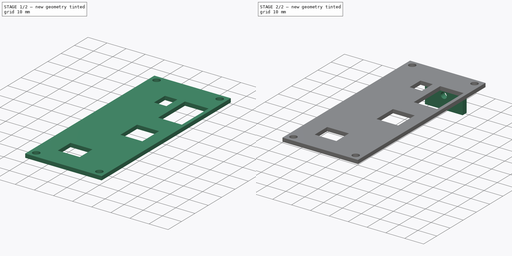
[diagram: build sequence overview — one tinted view per stage of 2, left to right]
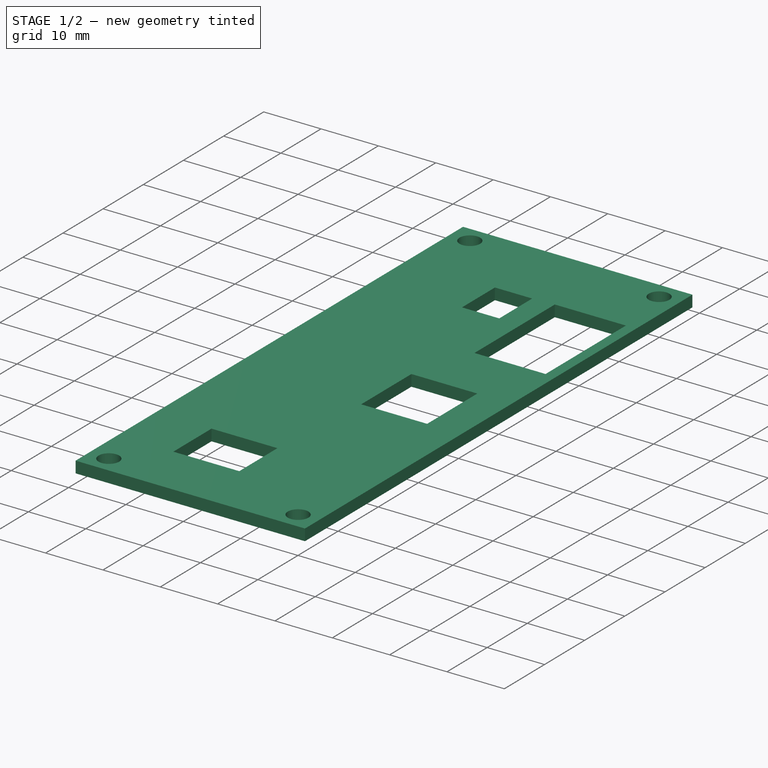
[diagram: stage 1 of 2 — iso view after this stage's code; geometry added in this stage tinted green]
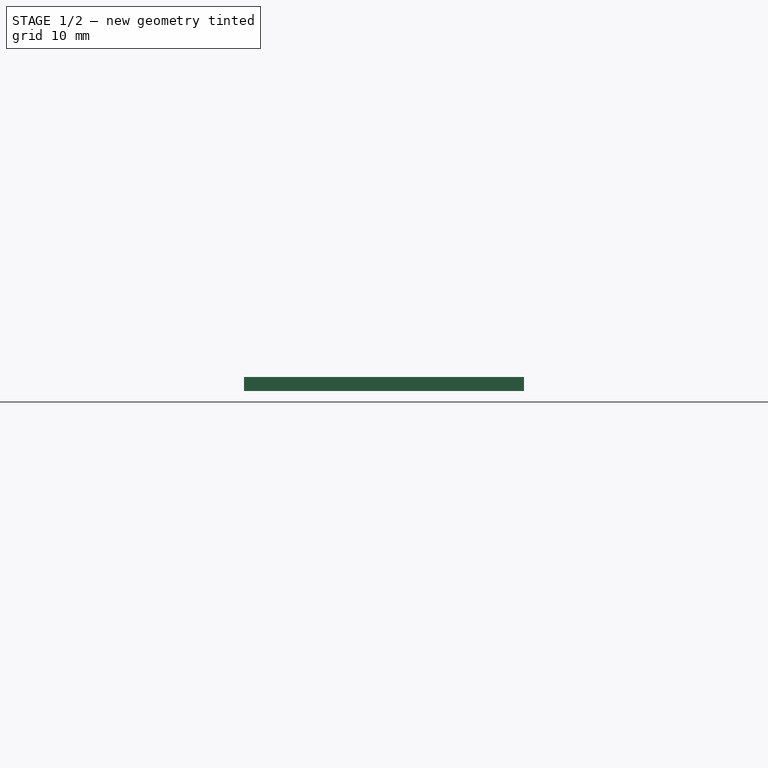
[diagram: stage 1 of 2 — front view after this stage's code; geometry added in this stage tinted green]
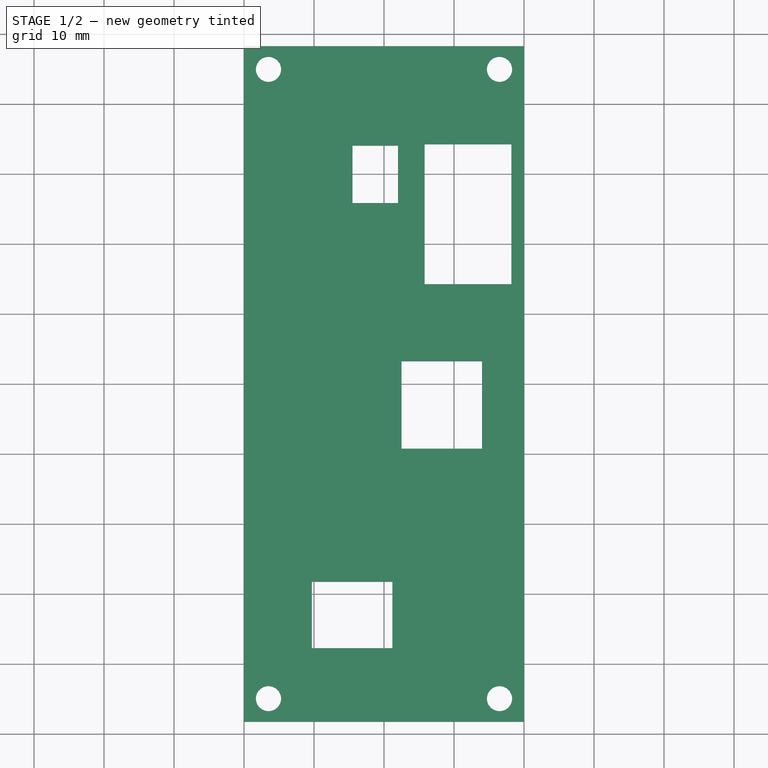
[diagram: stage 1 of 2 — top view after this stage's code; geometry added in this stage tinted green]
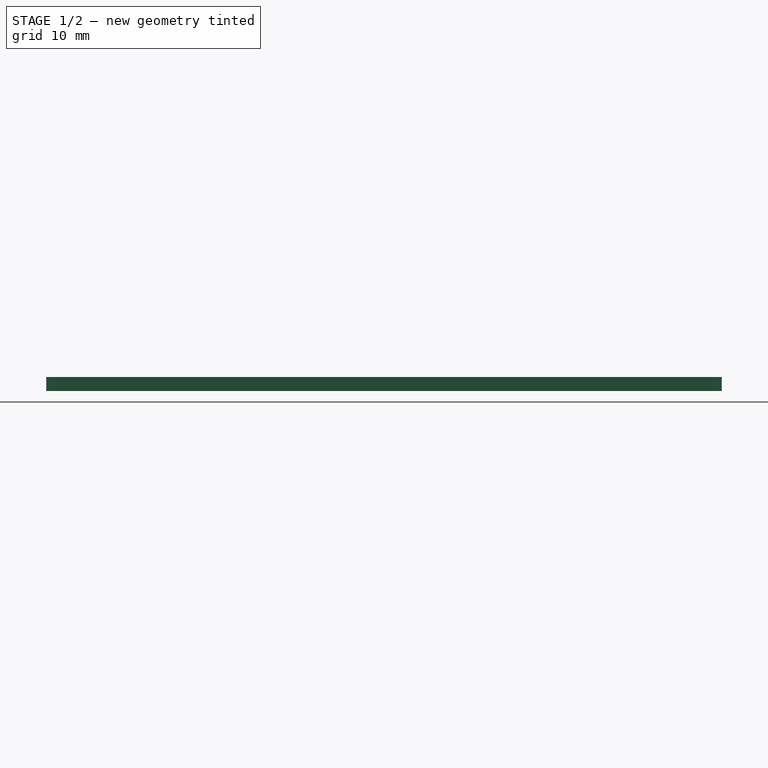
[diagram: stage 1 of 2 — right view after this stage's code; geometry added in this stage tinted green]
FCSTD DOCUMENT  (FreeCAD 0.18.4R)
Label: right_case_2
License: All rights reserved
LicenseURL: http://en.wikipedia.org/wiki/All_rights_reserved
objects: Sketcher::SketchObject×4, PartDesign::Pad×2, PartDesign::Pocket×2, PartDesign::Body×1
note: 13 computed .brp shape members not serialized (recipe doc carries the construction recipe); baked Part::Feature solids carry a one-line shape summary decoded from their .brp

FEATURE [Sketcher::SketchObject] Sketch
  MapMode = 5
  Support = -> [XY_Plane]
  sketch-geometry (4):
    g0: LineSegment StartX=-20 StartY=48.25 StartZ=0 EndX=20 EndY=48.25 EndZ=0
    g1: LineSegment StartX=20 StartY=48.25 StartZ=0 EndX=20 EndY=-48.25 EndZ=0
    g2: LineSegment StartX=20 StartY=-48.25 StartZ=0 EndX=-20 EndY=-48.25 EndZ=0
    g3: LineSegment StartX=-20 StartY=-48.25 StartZ=0 EndX=-20 EndY=48.25 EndZ=0
  constraints (10):
    c: Coincident(g0,g1)
    c: Coincident(g1,g2)
    c: Coincident(g2,g3)
    c: Coincident(g3,g0)
    c: Horizontal(g2)
    c: Vertical(g1)
    c: DistanceX(g0,g0) = 40
    c: DistanceY(g3,g3) = 96.5
    c: Symmetric(g0,g0,g-2)
    c: Symmetric(g2,g0,g-1)
FEATURE [PartDesign::Pad] Pad
  Length = 2
  Length2 = 100
  Profile = -> Sketch
  Type = 0
FEATURE [Sketcher::SketchObject] Sketch001
  ExternalGeometry = -> [Pad]
  MapMode = 5
  Placement = pos=(0,0,2) rot=(0,0,1;0rad)
  Support = -> [Pad]
  sketch-geometry (20):
    g0: Circle CenterX=-16.5 CenterY=44.95 CenterZ=0 NormalX=0 NormalY=0 NormalZ=1 AngleXU=0 Radius=1.8
    g1: Circle CenterX=16.5 CenterY=44.95 CenterZ=0 NormalX=0 NormalY=0 NormalZ=1 AngleXU=0 Radius=1.8
    g2: Circle CenterX=-16.5 CenterY=-44.95 CenterZ=0 NormalX=0 NormalY=0 NormalZ=1 AngleXU=0 Radius=1.8
    g3: Circle CenterX=16.5 CenterY=-44.95 CenterZ=0 NormalX=0 NormalY=0 NormalZ=1 AngleXU=0 Radius=1.8
    g4: LineSegment StartX=2.5 StartY=-9.25 StartZ=0 EndX=14 EndY=-9.25 EndZ=0
    g5: LineSegment StartX=14 StartY=-9.25 StartZ=0 EndX=14 EndY=3.25 EndZ=0
    g6: LineSegment StartX=14 StartY=3.25 StartZ=0 EndX=2.5 EndY=3.25 EndZ=0
    g7: LineSegment StartX=2.5 StartY=3.25 StartZ=0 EndX=2.5 EndY=-9.25 EndZ=0
    g8: LineSegment StartX=2 StartY=34.05 StartZ=0 EndX=-4.5 EndY=34.05 EndZ=0
    g9: LineSegment StartX=-4.5 StartY=34.05 StartZ=0 EndX=-4.5 EndY=25.85 EndZ=0
    g10: LineSegment StartX=-4.5 StartY=25.85 StartZ=0 EndX=2 EndY=25.85 EndZ=0
    g11: LineSegment StartX=2 StartY=25.85 StartZ=0 EndX=2 EndY=34.05 EndZ=0
    g12: LineSegment StartX=1.2 StartY=-37.75 StartZ=0 EndX=-10.3 EndY=-37.75 EndZ=0
    g13: LineSegment StartX=-10.3 StartY=-37.75 StartZ=0 EndX=-10.3 EndY=-28.25 EndZ=0
    g14: LineSegment StartX=-10.3 StartY=-28.25 StartZ=0 EndX=1.2 EndY=-28.25 EndZ=0
    g15: LineSegment StartX=1.2 StartY=-28.25 StartZ=0 EndX=1.2 EndY=-37.75 EndZ=0
    g16: LineSegment StartX=5.8 StartY=34.25 StartZ=0 EndX=18.2 EndY=34.25 EndZ=0
    g17: LineSegment StartX=18.2 StartY=34.25 StartZ=0 EndX=18.2 EndY=14.25 EndZ=0
    g18: LineSegment StartX=18.2 StartY=14.25 StartZ=0 EndX=5.8 EndY=14.25 EndZ=0
    g19: LineSegment StartX=5.8 StartY=14.25 StartZ=0 EndX=5.8 EndY=34.25 EndZ=0
  constraints (61):
    c: Distance(g0,g-4) = 3.5
    c: Radius(g0) = 1.8
    c: Radius(g1) = 1.8
    c: Radius(g3) = 1.8
    c: Radius(g2) = 1.8
    c: Distance(g2,g-4) = 3.5
    c: Distance(g2,g-6) = 3.3
    c: Distance(g3,g-5) = 3.5
    c: Distance(g3,g-6) = 3.3
    c: Distance(g1,g-5) = 3.5
    c: Distance(g-3) = 40
    c: Distance(g-3) = 40
    c: Distance(g1,g-3) = 3.3
    c: Coincident(g4,g5)
    c: Coincident(g5,g6)
    c: Coincident(g6,g7)
    c: Coincident(g7,g4)
    c: Horizontal(g4)
    c: Vertical(g5)
    c: DistanceY(g7,g7) = 12.5
    c: DistanceX(g6,g6) = 11.5
    c: Perpendicular(g7,g6)
    c: Distance(g5,g-5) = 6
    c: Coincident(g9,g10)
    c: Coincident(g10,g11)
    c: Coincident(g11,g8)
    c: Horizontal(g8)
    c: Horizontal(g10)
    c: Vertical(g9)
    c: Vertical(g11)
    c: DistanceY(g11,g11) = 8.2
    c: Coincident(g12,g13)
    c: Coincident(g13,g14)
    c: Coincident(g14,g15)
    c: Coincident(g15,g12)
    c: Horizontal(g12)
    c: Horizontal(g14)
    c: Vertical(g13)
    c: Vertical(g15)
    c: Distance(g13,g4) = 19
    c: Distance(g12,g13) = 9.5
    c: Distance(g12,g12) = 11.5
    c: Distance(g8,g-3) = 14.2
    c: Coincident(g9,g8)
    c: DistanceX(g8,g8) = 6.5
    c: Distance(g8,g-5) = 18
    c: Distance(g5,g-3) = 45
    c: Parallel(g7,g5)
    c: Distance(g14,g-5) = 18.8
    c: Coincident(g16,g17)
    c: Coincident(g17,g18)
    c: Coincident(g18,g19)
    c: Coincident(g19,g16)
    c: Horizontal(g16)
    c: Horizontal(g18)
    c: Vertical(g17)
    c: Vertical(g19)
    c: DistanceX(g16,g16) = 12.4
    c: DistanceY(g17,g17) = 20
    c: Distance(g16,g-3) = 14
    c: Distance(g16,g-5) = 1.8
FEATURE [PartDesign::Pocket] Pocket
  BaseFeature = -> Pad
  Length = 5
  Length2 = 100
  Profile = -> Sketch001
  Type = 0
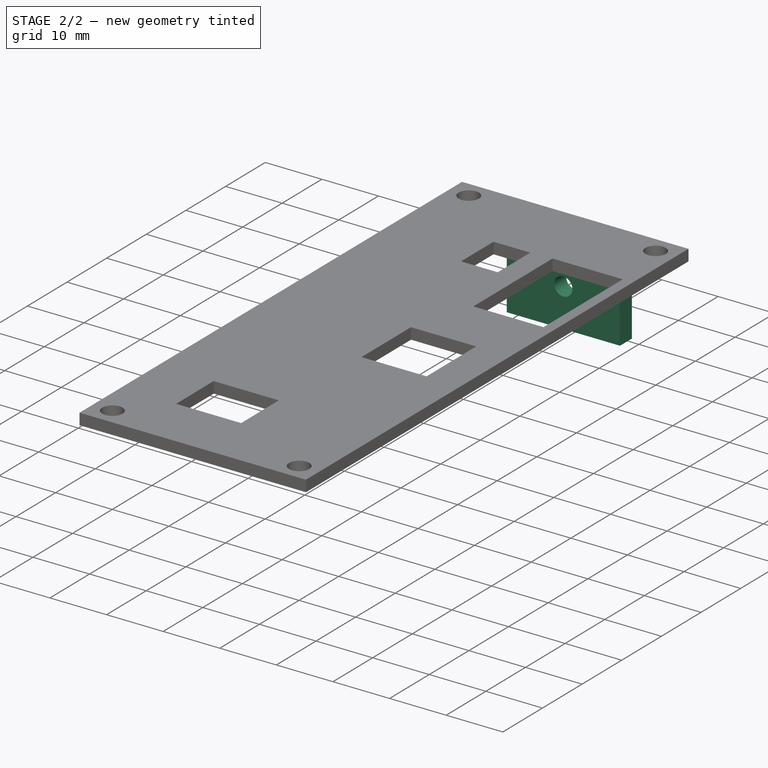
[diagram: stage 2 of 2 — iso view after this stage's code; geometry added in this stage tinted green]
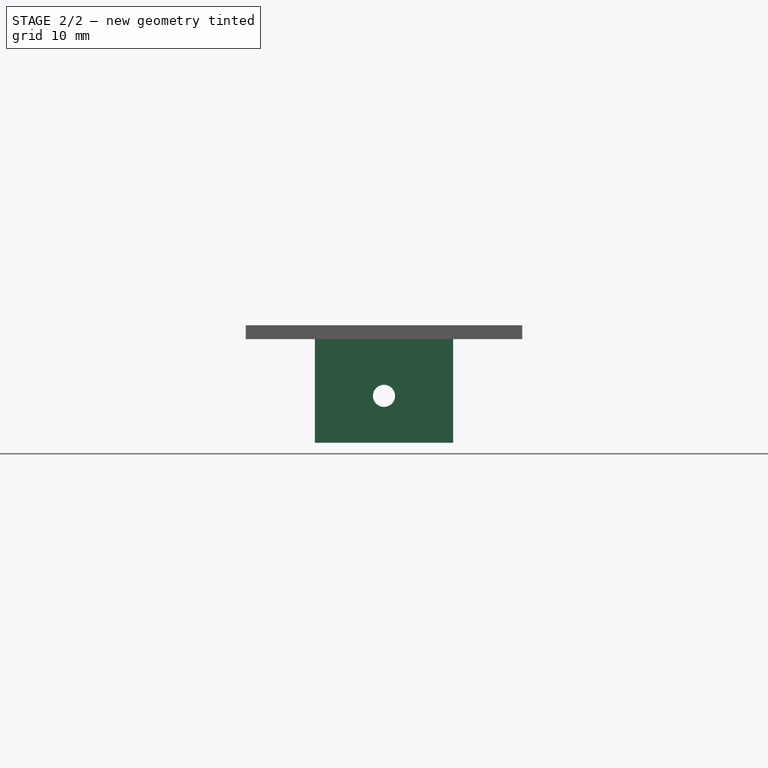
[diagram: stage 2 of 2 — front view after this stage's code; geometry added in this stage tinted green]
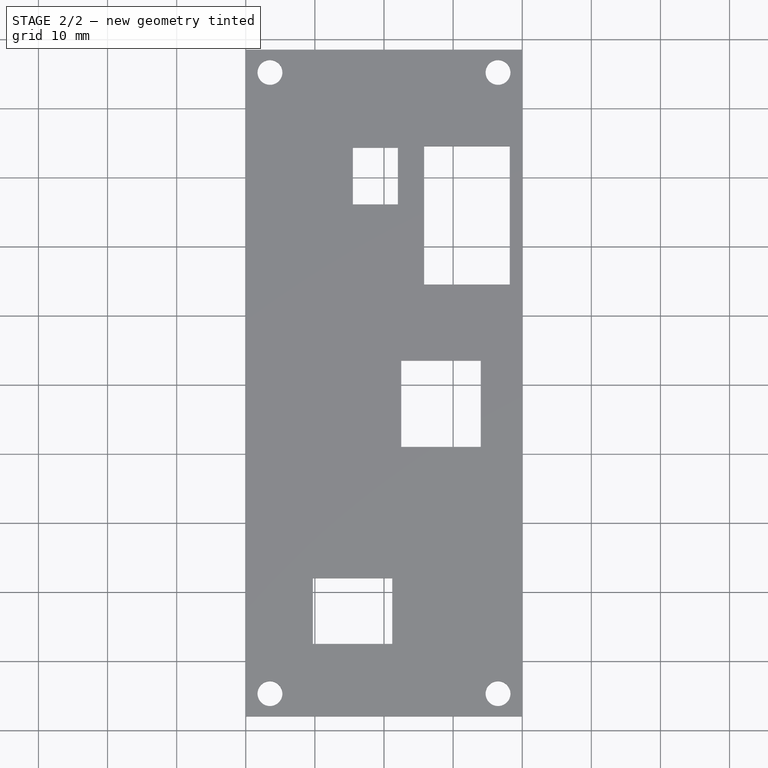
[diagram: stage 2 of 2 — top view after this stage's code; geometry added in this stage tinted green]
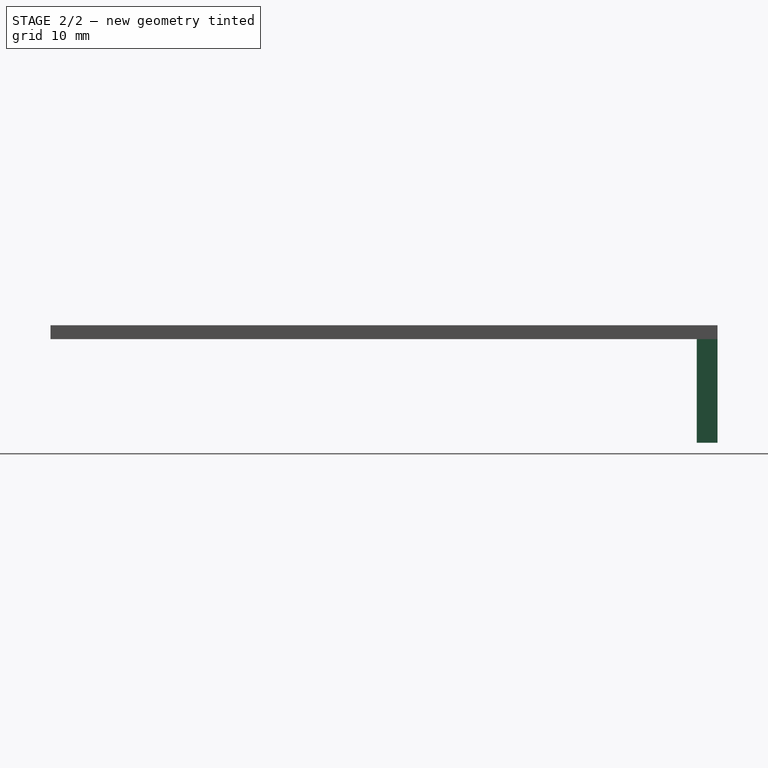
[diagram: stage 2 of 2 — right view after this stage's code; geometry added in this stage tinted green]
FEATURE [Sketcher::SketchObject] Sketch002
  ExternalGeometry = -> [Pocket]
  MapMode = 5
  Placement = pos=(0,0,0) rot=(1,0,0;3.14159rad)
  Support = -> [Pocket]
  sketch-geometry (4):
    g0: LineSegment StartX=-10 StartY=-48.25 StartZ=0 EndX=10 EndY=-48.25 EndZ=0
    g1: LineSegment StartX=10 StartY=-48.25 StartZ=0 EndX=10 EndY=-45.25 EndZ=0
    g2: LineSegment StartX=10 StartY=-45.25 StartZ=0 EndX=-10 EndY=-45.25 EndZ=0
    g3: LineSegment StartX=-10 StartY=-45.25 StartZ=0 EndX=-10 EndY=-48.25 EndZ=0
  constraints (11):
    c: Coincident(g0,g1)
    c: Coincident(g1,g2)
    c: Coincident(g2,g3)
    c: Coincident(g3,g0)
    c: Horizontal(g2)
    c: Vertical(g1)
    c: Vertical(g3)
    c: PointOnObject(g0,g-5)
    c: DistanceX(g2,g2) = 20
    c: DistanceY(g3,g3) = 3
    c: Symmetric(g0,g0,g-2)
FEATURE [PartDesign::Pad] Pad001
  BaseFeature = -> Pocket
  Length = 15
  Length2 = 100
  Profile = -> Sketch002
  Type = 0
FEATURE [Sketcher::SketchObject] Sketch003
  MapMode = 5
  Placement = pos=(0,48.25,0) rot=(0,0.707107,0.707107;3.14159rad)
  Support = -> [Pad001]
  sketch-geometry (1):
    g0: Circle CenterX=0 CenterY=-8.21569 CenterZ=0 NormalX=0 NormalY=0 NormalZ=1 AngleXU=0 Radius=1.6
  constraints (2):
    c: PointOnObject(g0,g-2)
    c: Radius(g0) = 1.6
FEATURE [PartDesign::Pocket] Pocket001
  BaseFeature = -> Pad001
  Length = 5
  Length2 = 100
  Profile = -> Sketch003
  Type = 0
FEATURE [PartDesign::Body] Body
  Group = -> [Sketch,Pad,Sketch001,Pocket,Sketch002,Pad001,Sketch003,Pocket001]
  Origin = -> Origin
  Tip = -> Pocket001
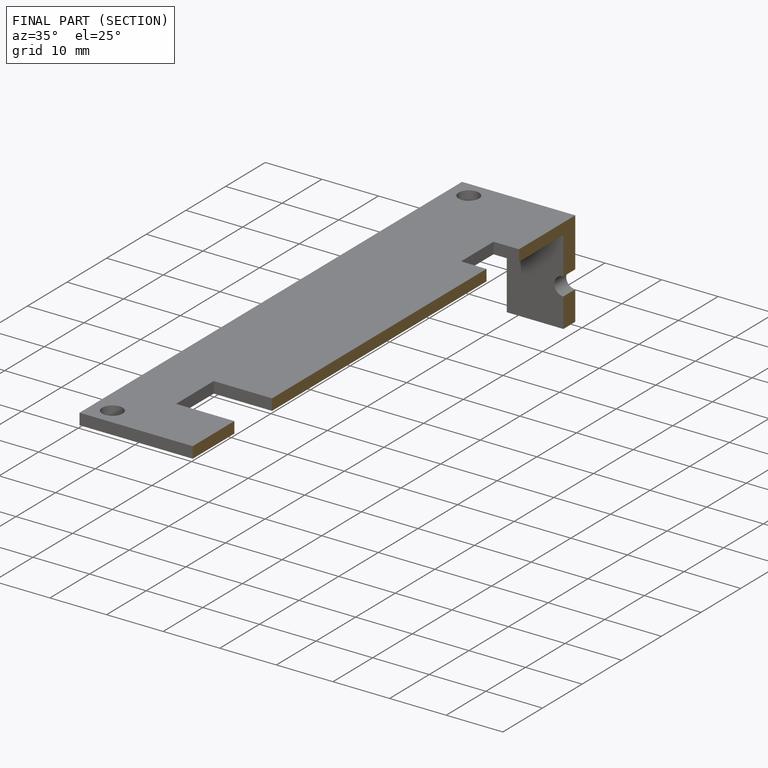
[diagram: finished part — half-section view (interior)]
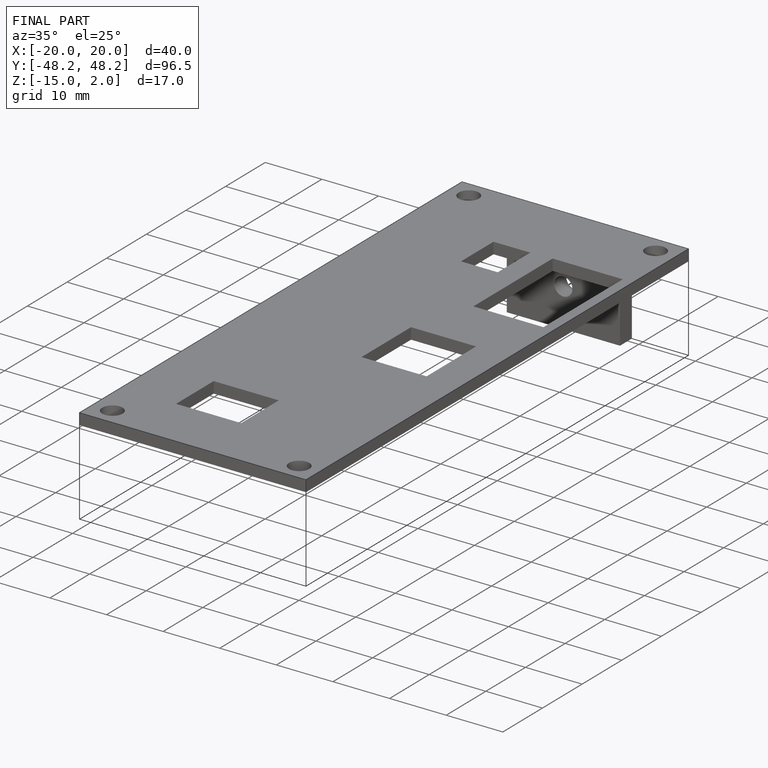
[diagram: finished part — iso view with bounding-box wireframe]
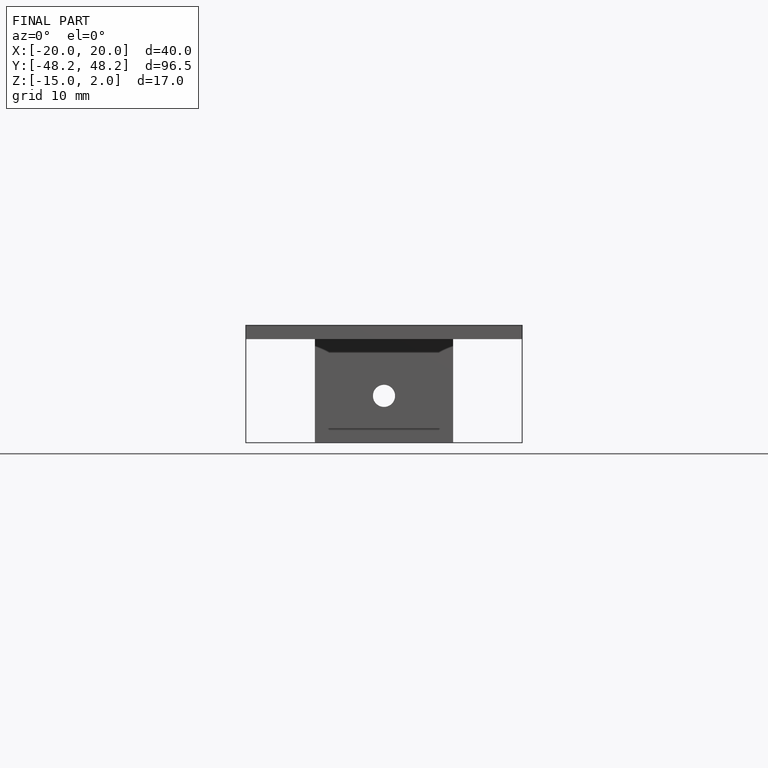
[diagram: finished part — front view with bounding-box wireframe]
